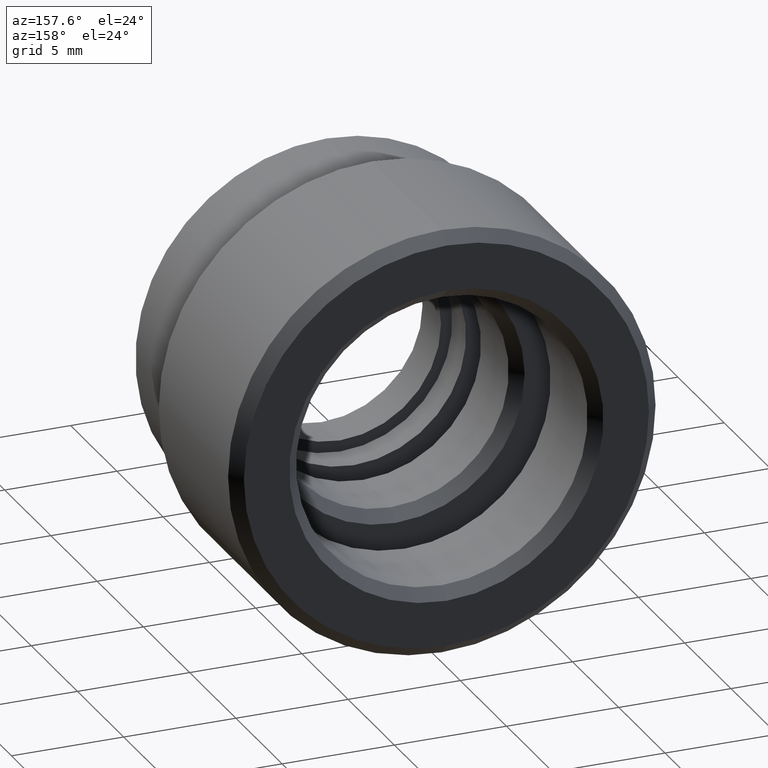
[diagram: clean part render]
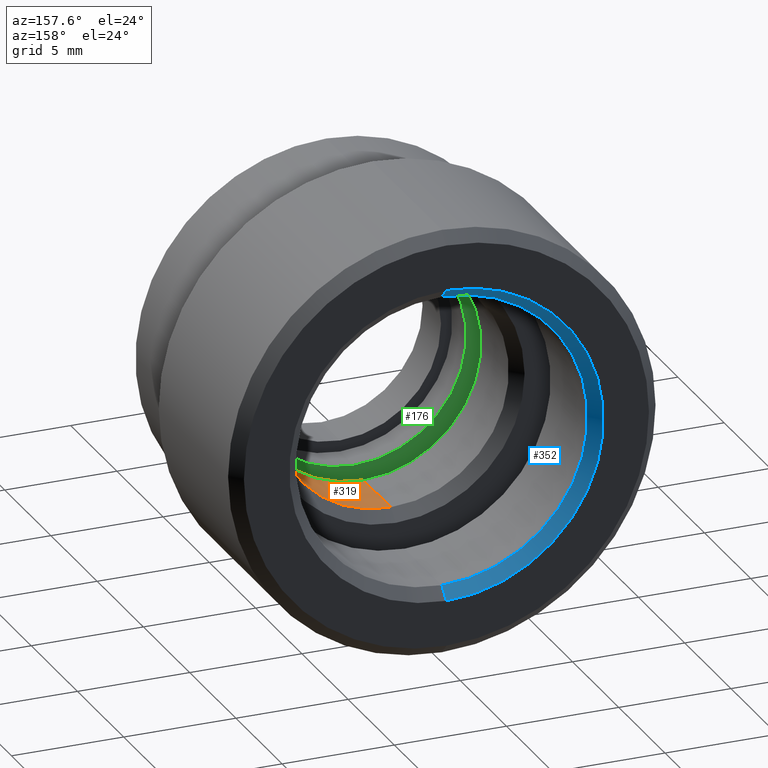
[diagram: same view with three faces highlighted in distinct colors, each labeled with its STEP entity id]
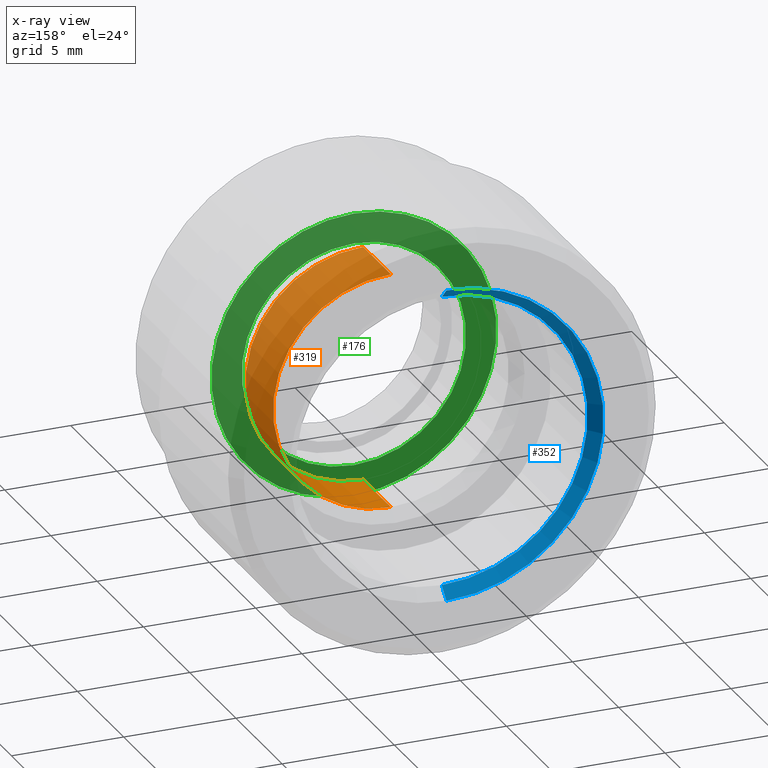
[diagram: x-ray of the same camera — body ghosted, the three highlighted faces saturated]
A machine part, auxiliary view with three faces highlighted in distinct colors.
The next image is the same camera in x-ray (body ghosted, the three faces saturated) — at least one of them is partly hidden behind the body in this view.
Their STEP definitions:

[orange] entity #319 — the highlighted cylindrical surface (partial cylindrical patch) has radius 5.25 mm, axis along (-0, -1, -0).
#6 = EDGE_CURVE ( 'NONE', #952, #553, #1008, .T. ) ;
#57 = AXIS2_PLACEMENT_3D ( 'NONE', #482, #102, #152 ) ;
#58 = CARTESIAN_POINT ( 'NONE',  ( 0.0000000000000000000, 4.500000000000000900, 0.0000000000000000000 ) ) ;
#102 = DIRECTION ( 'NONE',  ( -0.0000000000000000000, -1.000000000000000000, -0.0000000000000000000 ) ) ;
#152 = DIRECTION ( 'NONE',  ( 0.0000000000000000000, 0.0000000000000000000, -1.000000000000000000 ) ) ;
#298 = CARTESIAN_POINT ( 'NONE',  ( 0.0000000000000000000, 0.0000000000000000000, -5.249999999999999100 ) ) ;
#319 = ADVANCED_FACE ( 'NONE', ( #545 ), #484, .F. ) ;
#339 = CARTESIAN_POINT ( 'NONE',  ( 6.429395695523603200E-016, 7.499999999999999100, 5.249999999999999100 ) ) ;
#396 = DIRECTION ( 'NONE',  ( -0.0000000000000000000, -1.000000000000000000, -0.0000000000000000000 ) ) ;
#435 = AXIS2_PLACEMENT_3D ( 'NONE', #58, #864, #570 ) ;
#482 = CARTESIAN_POINT ( 'NONE',  ( 0.0000000000000000000, 0.0000000000000000000, 0.0000000000000000000 ) ) ;
#484 = CYLINDRICAL_SURFACE ( 'NONE', #57, 5.249999999999999100 ) ;
#505 = CARTESIAN_POINT ( 'NONE',  ( 0.0000000000000000000, 7.499999999999999100, 0.0000000000000000000 ) ) ;
#524 = DIRECTION ( 'NONE',  ( -0.0000000000000000000, 1.000000000000000000, -0.0000000000000000000 ) ) ;
#543 = CIRCLE ( 'NONE', #762, 5.249999999999999100 ) ;
#545 = FACE_OUTER_BOUND ( 'NONE', #1095, .T. ) ;
#553 = VERTEX_POINT ( 'NONE', #927 ) ;
#570 = DIRECTION ( 'NONE',  ( 0.0000000000000000000, 0.0000000000000000000, -1.000000000000000000 ) ) ;
#604 = VERTEX_POINT ( 'NONE', #1002 ) ;
#623 = EDGE_CURVE ( 'NONE', #952, #731, #543, .T. ) ;
#701 = CARTESIAN_POINT ( 'NONE',  ( 0.0000000000000000000, 7.499999999999999100, -5.249999999999999100 ) ) ;
#702 = CIRCLE ( 'NONE', #435, 5.250000000000000000 ) ;
#731 = VERTEX_POINT ( 'NONE', #701 ) ;
#762 = AXIS2_PLACEMENT_3D ( 'NONE', #505, #524, #899 ) ;
#806 = DIRECTION ( 'NONE',  ( -0.0000000000000000000, -1.000000000000000000, -0.0000000000000000000 ) ) ;
#821 = ORIENTED_EDGE ( 'NONE', *, *, #1072, .T. ) ;
#852 = LINE ( 'NONE', #298, #1105 ) ;
#853 = ORIENTED_EDGE ( 'NONE', *, *, #1106, .T. ) ;
#855 = ORIENTED_EDGE ( 'NONE', *, *, #6, .F. ) ;
#860 = ORIENTED_EDGE ( 'NONE', *, *, #623, .T. ) ;
#864 = DIRECTION ( 'NONE',  ( -0.0000000000000000000, -1.000000000000000000, -0.0000000000000000000 ) ) ;
#899 = DIRECTION ( 'NONE',  ( 0.0000000000000000000, 0.0000000000000000000, 1.000000000000000000 ) ) ;
#919 = CARTESIAN_POINT ( 'NONE',  ( 6.429395695523603200E-016, 0.0000000000000000000, 5.249999999999999100 ) ) ;
#927 = CARTESIAN_POINT ( 'NONE',  ( 6.429395695523604200E-016, 4.500000000000000900, 5.250000000000000000 ) ) ;
#952 = VERTEX_POINT ( 'NONE', #339 ) ;
#1002 = CARTESIAN_POINT ( 'NONE',  ( 0.0000000000000000000, 4.500000000000000900, -5.250000000000000000 ) ) ;
#1008 = LINE ( 'NONE', #919, #1054 ) ;
#1054 = VECTOR ( 'NONE', #806, 1000.000000000000000 ) ;
#1072 = EDGE_CURVE ( 'NONE', #731, #604, #852, .T. ) ;
#1095 = EDGE_LOOP ( 'NONE', ( #855, #860, #821, #853 ) ) ;
#1105 = VECTOR ( 'NONE', #396, 1000.000000000000000 ) ;
#1106 = EDGE_CURVE ( 'NONE', #604, #553, #702, .T. ) ;

[blue] entity #352 — the highlighted conical surface has half-angle 45 deg.
#28 = AXIS2_PLACEMENT_3D ( 'NONE', #958, #559, #650 ) ;
#61 = VECTOR ( 'NONE', #387, 1000.000000000000000 ) ;
#95 = CARTESIAN_POINT ( 'NONE',  ( 0.0000000000000000000, 13.50000000000000000, 6.999999999999997300 ) ) ;
#115 = VECTOR ( 'NONE', #581, 1000.000000000000000 ) ;
#118 = LINE ( 'NONE', #500, #61 ) ;
#129 = LINE ( 'NONE', #95, #115 ) ;
#175 = CARTESIAN_POINT ( 'NONE',  ( 0.0000000000000000000, 12.99999999999999800, 0.0000000000000000000 ) ) ;
#190 = ORIENTED_EDGE ( 'NONE', *, *, #827, .F. ) ;
#213 = EDGE_CURVE ( 'NONE', #1101, #627, #828, .T. ) ;
#219 = CIRCLE ( 'NONE', #648, 6.500000000000000000 ) ;
#233 = ORIENTED_EDGE ( 'NONE', *, *, #213, .F. ) ;
#352 = ADVANCED_FACE ( 'NONE', ( #397 ), #367, .F. ) ;
#367 = CONICAL_SURFACE ( 'NONE', #1019, 6.999999999999997300, 0.7853981633974439500 ) ;
#374 = DIRECTION ( 'NONE',  ( -0.0000000000000000000, 1.000000000000000000, -0.0000000000000000000 ) ) ;
#375 = CARTESIAN_POINT ( 'NONE',  ( 0.0000000000000000000, 12.99999999999999800, -6.500000000000000000 ) ) ;
#387 = DIRECTION ( 'NONE',  ( 8.659560562354895900E-017, 0.7071067811865505700, -0.7071067811865444600 ) ) ;
#390 = CARTESIAN_POINT ( 'NONE',  ( 0.0000000000000000000, 13.50000000000000000, 0.0000000000000000000 ) ) ;
#397 = FACE_OUTER_BOUND ( 'NONE', #647, .T. ) ;
#401 = DIRECTION ( 'NONE',  ( 0.0000000000000000000, 0.0000000000000000000, 1.000000000000000000 ) ) ;
#479 = VERTEX_POINT ( 'NONE', #1084 ) ;
#500 = CARTESIAN_POINT ( 'NONE',  ( 8.572527594031470200E-016, 13.50000000000000000, -6.999999999999997300 ) ) ;
#559 = DIRECTION ( 'NONE',  ( -0.0000000000000000000, -1.000000000000000000, -0.0000000000000000000 ) ) ;
#581 = DIRECTION ( 'NONE',  ( 0.0000000000000000000, 0.7071067811865505700, 0.7071067811865444600 ) ) ;
#627 = VERTEX_POINT ( 'NONE', #848 ) ;
#642 = CARTESIAN_POINT ( 'NONE',  ( 0.0000000000000000000, 13.50000000000000000, 6.999999999999997300 ) ) ;
#647 = EDGE_LOOP ( 'NONE', ( #190, #707, #233, #921 ) ) ;
#648 = AXIS2_PLACEMENT_3D ( 'NONE', #175, #890, #1018 ) ;
#650 = DIRECTION ( 'NONE',  ( 0.0000000000000000000, 0.0000000000000000000, 1.000000000000000000 ) ) ;
#707 = ORIENTED_EDGE ( 'NONE', *, *, #997, .T. ) ;
#827 = EDGE_CURVE ( 'NONE', #1059, #479, #219, .T. ) ;
#828 = CIRCLE ( 'NONE', #28, 6.999999999999997300 ) ;
#848 = CARTESIAN_POINT ( 'NONE',  ( 8.572527594031470200E-016, 13.50000000000000000, -6.999999999999997300 ) ) ;
#890 = DIRECTION ( 'NONE',  ( -0.0000000000000000000, 1.000000000000000000, -0.0000000000000000000 ) ) ;
#921 = ORIENTED_EDGE ( 'NONE', *, *, #932, .F. ) ;
#932 = EDGE_CURVE ( 'NONE', #479, #1101, #129, .T. ) ;
#958 = CARTESIAN_POINT ( 'NONE',  ( 0.0000000000000000000, 13.50000000000000000, 0.0000000000000000000 ) ) ;
#997 = EDGE_CURVE ( 'NONE', #1059, #627, #118, .T. ) ;
#1018 = DIRECTION ( 'NONE',  ( 0.0000000000000000000, 0.0000000000000000000, 1.000000000000000000 ) ) ;
#1019 = AXIS2_PLACEMENT_3D ( 'NONE', #390, #374, #401 ) ;
#1059 = VERTEX_POINT ( 'NONE', #375 ) ;
#1084 = CARTESIAN_POINT ( 'NONE',  ( 7.960204194457795500E-016, 12.99999999999999800, 6.500000000000000000 ) ) ;
#1101 = VERTEX_POINT ( 'NONE', #642 ) ;

[green] entity #176 — the highlighted planar face has unit normal (0, 1, 0).
#38 = VERTEX_POINT ( 'NONE', #885 ) ;
#144 = AXIS2_PLACEMENT_3D ( 'NONE', #920, #944, #606 ) ;
#154 = CIRCLE ( 'NONE', #609, 6.349999999999999600 ) ;
#176 = ADVANCED_FACE ( 'NONE', ( #904, #1065 ), #933, .T. ) ;
#200 = CIRCLE ( 'NONE', #711, 5.000000000000000000 ) ;
#257 = CIRCLE ( 'NONE', #772, 5.000000000000000000 ) ;
#269 = VERTEX_POINT ( 'NONE', #698 ) ;
#310 = CIRCLE ( 'NONE', #985, 6.349999999999999600 ) ;
#344 = EDGE_CURVE ( 'NONE', #464, #1070, #310, .T. ) ;
#356 = CARTESIAN_POINT ( 'NONE',  ( 0.0000000000000000000, 3.500000000000000000, 0.0000000000000000000 ) ) ;
#362 = DIRECTION ( 'NONE',  ( -0.0000000000000000000, -1.000000000000000000, -0.0000000000000000000 ) ) ;
#366 = DIRECTION ( 'NONE',  ( 0.0000000000000000000, 0.0000000000000000000, -1.000000000000000000 ) ) ;
#464 = VERTEX_POINT ( 'NONE', #1013 ) ;
#492 = DIRECTION ( 'NONE',  ( -0.0000000000000000000, -1.000000000000000000, -0.0000000000000000000 ) ) ;
#498 = CARTESIAN_POINT ( 'NONE',  ( 0.0000000000000000000, 3.500000000000000000, 0.0000000000000000000 ) ) ;
#517 = CARTESIAN_POINT ( 'NONE',  ( 0.0000000000000000000, 3.500000000000000000, -6.349999999999999600 ) ) ;
#539 = EDGE_LOOP ( 'NONE', ( #705, #730 ) ) ;
#594 = EDGE_LOOP ( 'NONE', ( #743, #733 ) ) ;
#606 = DIRECTION ( 'NONE',  ( 0.0000000000000000000, -0.0000000000000000000, 1.000000000000000000 ) ) ;
#607 = EDGE_CURVE ( 'NONE', #269, #38, #257, .T. ) ;
#609 = AXIS2_PLACEMENT_3D ( 'NONE', #680, #654, #628 ) ;
#628 = DIRECTION ( 'NONE',  ( 0.0000000000000000000, 0.0000000000000000000, -1.000000000000000000 ) ) ;
#640 = DIRECTION ( 'NONE',  ( 0.0000000000000000000, 0.0000000000000000000, -1.000000000000000000 ) ) ;
#654 = DIRECTION ( 'NONE',  ( -0.0000000000000000000, -1.000000000000000000, -0.0000000000000000000 ) ) ;
#680 = CARTESIAN_POINT ( 'NONE',  ( 0.0000000000000000000, 3.500000000000000000, 0.0000000000000000000 ) ) ;
#698 = CARTESIAN_POINT ( 'NONE',  ( 0.0000000000000000000, 3.500000000000000000, -5.000000000000000000 ) ) ;
#705 = ORIENTED_EDGE ( 'NONE', *, *, #878, .F. ) ;
#711 = AXIS2_PLACEMENT_3D ( 'NONE', #799, #804, #809 ) ;
#730 = ORIENTED_EDGE ( 'NONE', *, *, #344, .F. ) ;
#733 = ORIENTED_EDGE ( 'NONE', *, *, #746, .T. ) ;
#743 = ORIENTED_EDGE ( 'NONE', *, *, #607, .T. ) ;
#746 = EDGE_CURVE ( 'NONE', #38, #269, #200, .T. ) ;
#772 = AXIS2_PLACEMENT_3D ( 'NONE', #498, #492, #640 ) ;
#799 = CARTESIAN_POINT ( 'NONE',  ( 0.0000000000000000000, 3.500000000000000000, 0.0000000000000000000 ) ) ;
#804 = DIRECTION ( 'NONE',  ( -0.0000000000000000000, -1.000000000000000000, -0.0000000000000000000 ) ) ;
#809 = DIRECTION ( 'NONE',  ( 0.0000000000000000000, 0.0000000000000000000, -1.000000000000000000 ) ) ;
#878 = EDGE_CURVE ( 'NONE', #1070, #464, #154, .T. ) ;
#885 = CARTESIAN_POINT ( 'NONE',  ( 6.123233995736766300E-016, 3.500000000000000000, 5.000000000000000000 ) ) ;
#904 = FACE_BOUND ( 'NONE', #594, .T. ) ;
#920 = CARTESIAN_POINT ( 'NONE',  ( 5.000000000000000000, 3.500000000000000000, 0.0000000000000000000 ) ) ;
#933 = PLANE ( 'NONE',  #144 ) ;
#944 = DIRECTION ( 'NONE',  ( 0.0000000000000000000, 1.000000000000000000, 0.0000000000000000000 ) ) ;
#985 = AXIS2_PLACEMENT_3D ( 'NONE', #356, #362, #366 ) ;
#1013 = CARTESIAN_POINT ( 'NONE',  ( 7.776507174585692200E-016, 3.500000000000000000, 6.349999999999999600 ) ) ;
#1065 = FACE_OUTER_BOUND ( 'NONE', #539, .T. ) ;
#1070 = VERTEX_POINT ( 'NONE', #517 ) ;